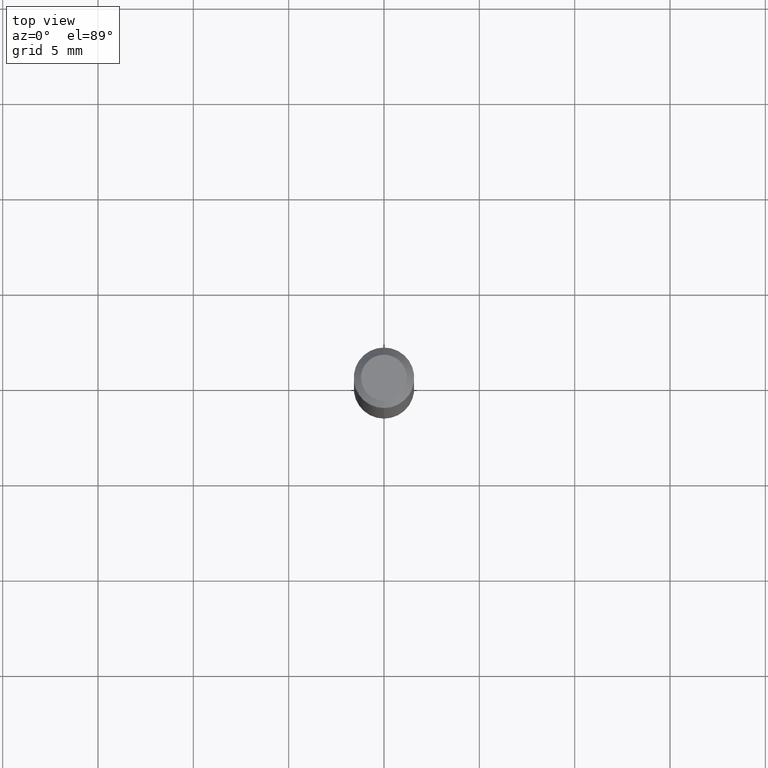
[diagram: clean part render]
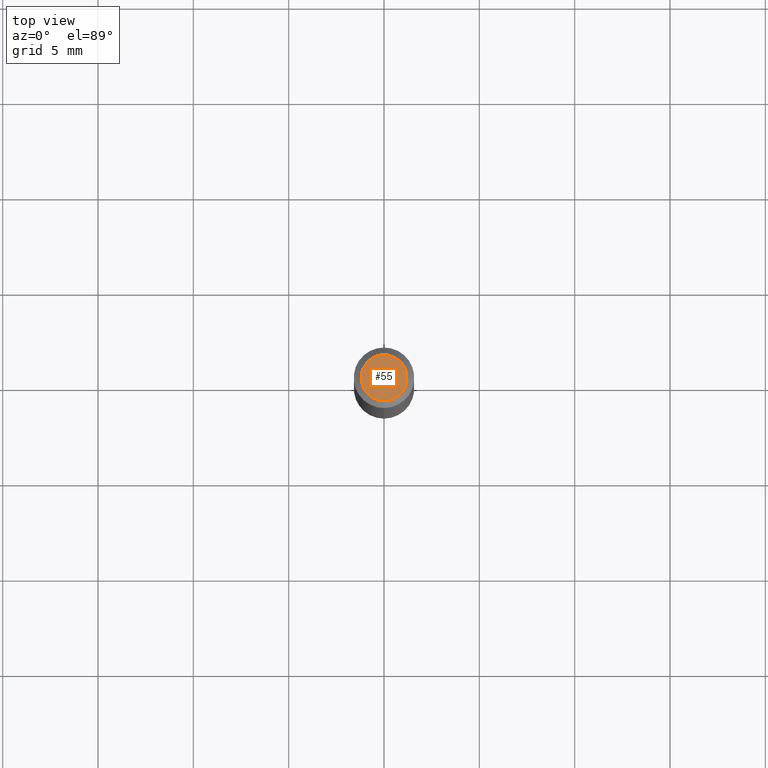
[diagram: same view with one face highlighted and labeled with its STEP entity id]
A machine part, top view. The second image highlights one B-rep face of the part: STEP entity #55.
In plain terms, the highlighted planar face has unit normal (0, -0, -1).
Its self-contained STEP definition (entity closure, byte-faithful):
#1 = CARTESIAN_POINT ( 'NONE',  ( 2.166652610438211172E-46, -3.093421743981394745E-32, -8.859889004959399911E-18 ) ) ;
#2 = DIRECTION ( 'NONE',  ( -2.445462476138705994E-29, 3.491490403829918303E-15, 1.000000000000000000 ) ) ;
#30 = EDGE_CURVE ( 'NONE', #425, #317, #487, .T. ) ;
#33 = CARTESIAN_POINT ( 'NONE',  ( 3.316907271900976096E-16, 0.04749999999999999362, -1.702757386844007983E-16 ) ) ;
#34 = DIRECTION ( 'NONE',  ( -2.445462476138705994E-29, 3.491490403829918303E-15, 1.000000000000000000 ) ) ;
#55 = ADVANCED_FACE ( 'NONE', ( #144 ), #141, .F. ) ;
#124 = DIRECTION ( 'NONE',  ( -6.982962677686266711E-15, -1.000000000000000000, 3.491490403829918697E-15 ) ) ;
#141 = PLANE ( 'NONE',  #218 ) ;
#144 = FACE_OUTER_BOUND ( 'NONE', #464, .T. ) ;
#218 = AXIS2_PLACEMENT_3D ( 'NONE', #33, #338, #297 ) ;
#297 = DIRECTION ( 'NONE',  ( 6.982962677686265922E-15, 1.000000000000000000, -3.491490403829918303E-15 ) ) ;
#317 = VERTEX_POINT ( 'NONE', #468 ) ;
#338 = DIRECTION ( 'NONE',  ( 2.445462476138705433E-29, -3.491490403829918303E-15, -1.000000000000000000 ) ) ;
#349 = EDGE_CURVE ( 'NONE', #317, #425, #471, .T. ) ;
#374 = AXIS2_PLACEMENT_3D ( 'NONE', #476, #2, #124 ) ;
#392 = AXIS2_PLACEMENT_3D ( 'NONE', #1, #34, #466 ) ;
#410 = ORIENTED_EDGE ( 'NONE', *, *, #30, .T. ) ;
#425 = VERTEX_POINT ( 'NONE', #450 ) ;
#450 = CARTESIAN_POINT ( 'NONE',  ( 3.840629472727447874E-16, 0.04749999999999999362, -1.747056831868805136E-16 ) ) ;
#464 = EDGE_LOOP ( 'NONE', ( #410, #499 ) ) ;
#466 = DIRECTION ( 'NONE',  ( -6.982962677686266711E-15, -1.000000000000000000, 3.491490403829918697E-15 ) ) ;
#468 = CARTESIAN_POINT ( 'NONE',  ( -3.773273898774340269E-16, -0.04749999999999999362, 1.569859051769617015E-16 ) ) ;
#471 = CIRCLE ( 'NONE', #374, 0.04749999999999999362 ) ;
#476 = CARTESIAN_POINT ( 'NONE',  ( 2.166652610438211172E-46, -3.093421743981394745E-32, -8.859889004959399911E-18 ) ) ;
#487 = CIRCLE ( 'NONE', #392, 0.04749999999999999362 ) ;
#499 = ORIENTED_EDGE ( 'NONE', *, *, #349, .T. ) ;